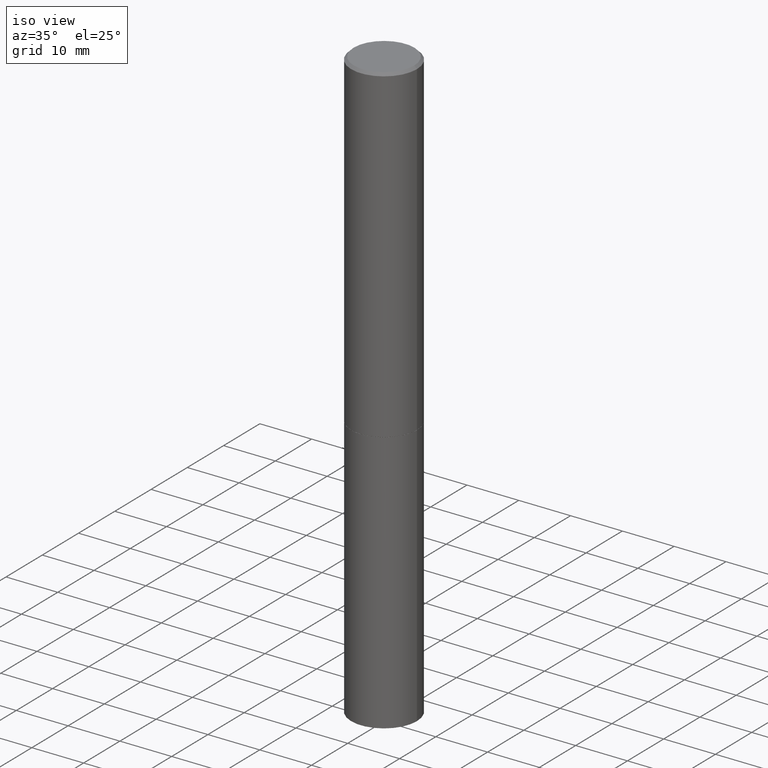
[diagram: clean part render]
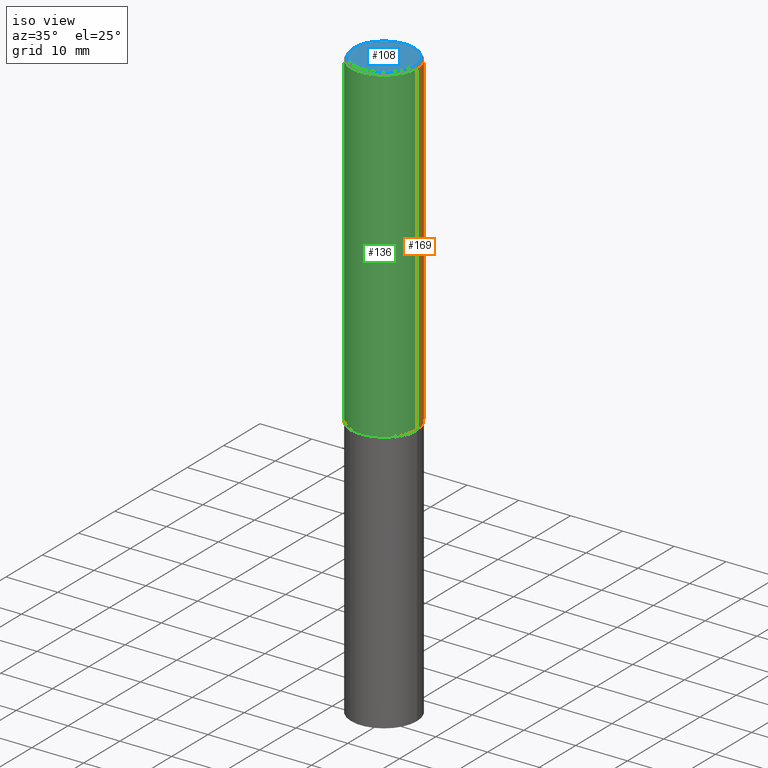
[diagram: same view with three faces highlighted in distinct colors, each labeled with its STEP entity id]
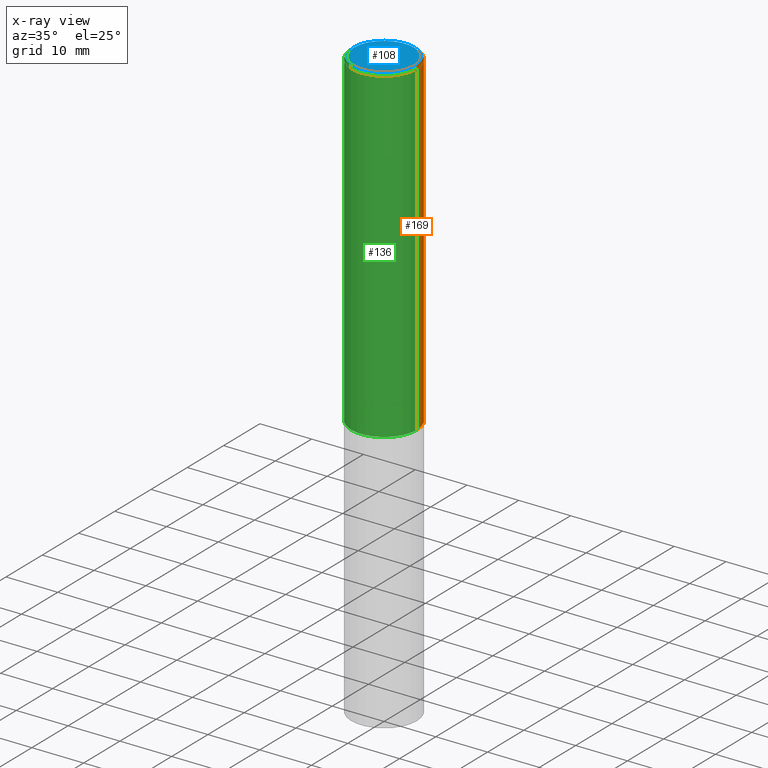
[diagram: x-ray of the same camera — body ghosted, the three highlighted faces saturated]
A machine part, iso view with three faces highlighted in distinct colors.
The next image is the same camera in x-ray (body ghosted, the three faces saturated) — at least one of them is partly hidden behind the body in this view.
Their STEP definitions:

[orange] entity #169 — the highlighted cylindrical surface (partial cylindrical patch) has radius 6.35 mm, axis along (-0, 0, 1).
#19 = LINE ( 'NONE', #259, #247 ) ;
#35 = CIRCLE ( 'NONE', #109, 0.2500000000000000000 ) ;
#38 = ORIENTED_EDGE ( 'NONE', *, *, #210, .T. ) ;
#52 = VERTEX_POINT ( 'NONE', #111 ) ;
#61 = CARTESIAN_POINT ( 'NONE',  ( 4.890937612370287172E-31, -6.982962677686310098E-17, -0.02000000000000005593 ) ) ;
#62 = EDGE_CURVE ( 'NONE', #365, #369, #207, .T. ) ;
#78 = EDGE_CURVE ( 'NONE', #52, #161, #19, .T. ) ;
#90 = DIRECTION ( 'NONE',  ( -2.445468806185136597E-29, 3.491481338843145583E-15, 1.000000000000000000 ) ) ;
#91 = DIRECTION ( 'NONE',  ( 1.000000000000000000, -6.982962677686266711E-15, 0.000000000000000000 ) ) ;
#109 = AXIS2_PLACEMENT_3D ( 'NONE', #387, #90, #177 ) ;
#110 = DIRECTION ( 'NONE',  ( -2.445468806185136877E-29, 3.491481338843145188E-15, 1.000000000000000000 ) ) ;
#111 = CARTESIAN_POINT ( 'NONE',  ( -0.2500000000000000000, -2.621163906872689391E-15, -2.499000000000000110 ) ) ;
#121 = CARTESIAN_POINT ( 'NONE',  ( 0.000000000000000000, 0.000000000000000000, 0.000000000000000000 ) ) ;
#161 = VERTEX_POINT ( 'NONE', #319 ) ;
#169 = ADVANCED_FACE ( 'NONE', ( #172 ), #291, .T. ) ;
#172 = FACE_OUTER_BOUND ( 'NONE', #338, .T. ) ;
#177 = DIRECTION ( 'NONE',  ( 1.000000000000000000, -6.982962677686266711E-15, 0.000000000000000000 ) ) ;
#183 = CARTESIAN_POINT ( 'NONE',  ( 0.2499999999999996669, -1.784954126219743428E-15, -0.02000000000000005593 ) ) ;
#204 = CARTESIAN_POINT ( 'NONE',  ( 0.2499999999999998335, -1.745740669421565494E-15, 1.219044193948983107E-29 ) ) ;
#205 = VECTOR ( 'NONE', #324, 39.37007874015748143 ) ;
#207 = LINE ( 'NONE', #204, #205 ) ;
#210 = EDGE_CURVE ( 'NONE', #365, #52, #35, .T. ) ;
#214 = AXIS2_PLACEMENT_3D ( 'NONE', #61, #220, #91 ) ;
#220 = DIRECTION ( 'NONE',  ( -2.445468806185136597E-29, 3.491481338843145583E-15, 1.000000000000000000 ) ) ;
#229 = ORIENTED_EDGE ( 'NONE', *, *, #375, .F. ) ;
#242 = DIRECTION ( 'NONE',  ( 1.000000000000000000, -6.982962677686266711E-15, 4.876176775795935793E-29 ) ) ;
#247 = VECTOR ( 'NONE', #110, 39.37007874015748143 ) ;
#259 = CARTESIAN_POINT ( 'NONE',  ( -0.2499999999999998335, 1.776356839400249281E-15, -1.229733772563725605E-29 ) ) ;
#285 = ORIENTED_EDGE ( 'NONE', *, *, #62, .F. ) ;
#286 = CIRCLE ( 'NONE', #214, 0.2499999999999996669 ) ;
#291 = CYLINDRICAL_SURFACE ( 'NONE', #322, 0.2499999999999998335 ) ;
#296 = DIRECTION ( 'NONE',  ( -2.445468806185136597E-29, 3.491481338843145583E-15, 1.000000000000000000 ) ) ;
#310 = ORIENTED_EDGE ( 'NONE', *, *, #78, .T. ) ;
#319 = CARTESIAN_POINT ( 'NONE',  ( -0.2499999999999996669, 1.675911042644701210E-15, -0.02000000000000005593 ) ) ;
#322 = AXIS2_PLACEMENT_3D ( 'NONE', #121, #296, #242 ) ;
#324 = DIRECTION ( 'NONE',  ( -2.445468806185136877E-29, 3.491481338843145188E-15, 1.000000000000000000 ) ) ;
#338 = EDGE_LOOP ( 'NONE', ( #38, #310, #229, #285 ) ) ;
#352 = CARTESIAN_POINT ( 'NONE',  ( 0.2500000000000000000, -1.047095253519058861E-14, -2.499000000000000110 ) ) ;
#365 = VERTEX_POINT ( 'NONE', #352 ) ;
#369 = VERTEX_POINT ( 'NONE', #183 ) ;
#375 = EDGE_CURVE ( 'NONE', #369, #161, #286, .T. ) ;
#387 = CARTESIAN_POINT ( 'NONE',  ( 6.111226546656657010E-29, -8.725211865769021935E-15, -2.499000000000000110 ) ) ;

[blue] entity #108 — the highlighted planar face has unit normal (0, -0, -1).
#9 = CIRCLE ( 'NONE', #379, 0.2299999999999996769 ) ;
#48 = DIRECTION ( 'NONE',  ( 2.438088387897960049E-29, -3.491481338843145188E-15, -1.000000000000000000 ) ) ;
#55 = CARTESIAN_POINT ( 'NONE',  ( 1.606081415867838898E-15, 0.2299999999999996769, -8.030407079339223086E-16 ) ) ;
#71 = ORIENTED_EDGE ( 'NONE', *, *, #195, .T. ) ;
#84 = DIRECTION ( 'NONE',  ( -1.000000000000000000, 6.982962677686265922E-15, -4.876176775795935793E-29 ) ) ;
#100 = EDGE_LOOP ( 'NONE', ( #71, #163 ) ) ;
#102 = VERTEX_POINT ( 'NONE', #231 ) ;
#108 = ADVANCED_FACE ( 'NONE', ( #203 ), #344, .F. ) ;
#119 = DIRECTION ( 'NONE',  ( -2.445468806185136597E-29, 3.491481338843145583E-15, 1.000000000000000000 ) ) ;
#154 = DIRECTION ( 'NONE',  ( 1.000000000000000000, -6.982962677686266711E-15, 4.876176775795935793E-29 ) ) ;
#163 = ORIENTED_EDGE ( 'NONE', *, *, #186, .T. ) ;
#186 = EDGE_CURVE ( 'NONE', #201, #102, #188, .T. ) ;
#188 = CIRCLE ( 'NONE', #389, 0.2299999999999996769 ) ;
#195 = EDGE_CURVE ( 'NONE', #102, #201, #9, .T. ) ;
#201 = VERTEX_POINT ( 'NONE', #241 ) ;
#203 = FACE_OUTER_BOUND ( 'NONE', #100, .T. ) ;
#231 = CARTESIAN_POINT ( 'NONE',  ( -0.2299999999999996769, 1.640996229256270350E-15, -1.135408596578604159E-29 ) ) ;
#236 = DIRECTION ( 'NONE',  ( -2.445468806185136597E-29, 3.491481338843145583E-15, 1.000000000000000000 ) ) ;
#241 = CARTESIAN_POINT ( 'NONE',  ( 0.2299999999999996769, -1.681434332853596842E-15, 1.149527484987431259E-29 ) ) ;
#302 = AXIS2_PLACEMENT_3D ( 'NONE', #55, #48, #84 ) ;
#327 = DIRECTION ( 'NONE',  ( 1.000000000000000000, -6.982962677686266711E-15, 4.876176775795935793E-29 ) ) ;
#332 = CARTESIAN_POINT ( 'NONE',  ( 0.000000000000000000, 0.000000000000000000, 0.000000000000000000 ) ) ;
#344 = PLANE ( 'NONE',  #302 ) ;
#379 = AXIS2_PLACEMENT_3D ( 'NONE', #332, #119, #154 ) ;
#385 = CARTESIAN_POINT ( 'NONE',  ( 0.000000000000000000, 0.000000000000000000, 0.000000000000000000 ) ) ;
#389 = AXIS2_PLACEMENT_3D ( 'NONE', #385, #236, #327 ) ;

[green] entity #136 — the highlighted cylindrical surface (partial cylindrical patch) has radius 6.35 mm, axis along (-0, 0, 1).
#13 = DIRECTION ( 'NONE',  ( -2.445468806185136597E-29, 3.491481338843145583E-15, 1.000000000000000000 ) ) ;
#16 = ORIENTED_EDGE ( 'NONE', *, *, #78, .F. ) ;
#19 = LINE ( 'NONE', #259, #247 ) ;
#22 = DIRECTION ( 'NONE',  ( -2.445468806185136597E-29, 3.491481338843145583E-15, 1.000000000000000000 ) ) ;
#24 = DIRECTION ( 'NONE',  ( 1.000000000000000000, -6.982962677686266711E-15, 0.000000000000000000 ) ) ;
#52 = VERTEX_POINT ( 'NONE', #111 ) ;
#57 = CYLINDRICAL_SURFACE ( 'NONE', #132, 0.2499999999999998335 ) ;
#58 = CIRCLE ( 'NONE', #127, 0.2499999999999996669 ) ;
#62 = EDGE_CURVE ( 'NONE', #365, #369, #207, .T. ) ;
#73 = ORIENTED_EDGE ( 'NONE', *, *, #345, .F. ) ;
#78 = EDGE_CURVE ( 'NONE', #52, #161, #19, .T. ) ;
#80 = EDGE_LOOP ( 'NONE', ( #16, #276, #281, #73 ) ) ;
#81 = CIRCLE ( 'NONE', #92, 0.2500000000000000000 ) ;
#85 = CARTESIAN_POINT ( 'NONE',  ( 4.890937612370287172E-31, -6.982962677686310098E-17, -0.02000000000000005593 ) ) ;
#86 = FACE_OUTER_BOUND ( 'NONE', #80, .T. ) ;
#92 = AXIS2_PLACEMENT_3D ( 'NONE', #292, #22, #382 ) ;
#110 = DIRECTION ( 'NONE',  ( -2.445468806185136877E-29, 3.491481338843145188E-15, 1.000000000000000000 ) ) ;
#111 = CARTESIAN_POINT ( 'NONE',  ( -0.2500000000000000000, -2.621163906872689391E-15, -2.499000000000000110 ) ) ;
#125 = DIRECTION ( 'NONE',  ( -2.445468806185136597E-29, 3.491481338843145583E-15, 1.000000000000000000 ) ) ;
#127 = AXIS2_PLACEMENT_3D ( 'NONE', #85, #125, #24 ) ;
#129 = EDGE_CURVE ( 'NONE', #52, #365, #81, .T. ) ;
#132 = AXIS2_PLACEMENT_3D ( 'NONE', #180, #13, #342 ) ;
#136 = ADVANCED_FACE ( 'NONE', ( #86 ), #57, .T. ) ;
#161 = VERTEX_POINT ( 'NONE', #319 ) ;
#180 = CARTESIAN_POINT ( 'NONE',  ( 0.000000000000000000, 0.000000000000000000, 0.000000000000000000 ) ) ;
#183 = CARTESIAN_POINT ( 'NONE',  ( 0.2499999999999996669, -1.784954126219743428E-15, -0.02000000000000005593 ) ) ;
#204 = CARTESIAN_POINT ( 'NONE',  ( 0.2499999999999998335, -1.745740669421565494E-15, 1.219044193948983107E-29 ) ) ;
#205 = VECTOR ( 'NONE', #324, 39.37007874015748143 ) ;
#207 = LINE ( 'NONE', #204, #205 ) ;
#247 = VECTOR ( 'NONE', #110, 39.37007874015748143 ) ;
#259 = CARTESIAN_POINT ( 'NONE',  ( -0.2499999999999998335, 1.776356839400249281E-15, -1.229733772563725605E-29 ) ) ;
#276 = ORIENTED_EDGE ( 'NONE', *, *, #129, .T. ) ;
#281 = ORIENTED_EDGE ( 'NONE', *, *, #62, .T. ) ;
#292 = CARTESIAN_POINT ( 'NONE',  ( 6.111226546656657010E-29, -8.725211865769021935E-15, -2.499000000000000110 ) ) ;
#319 = CARTESIAN_POINT ( 'NONE',  ( -0.2499999999999996669, 1.675911042644701210E-15, -0.02000000000000005593 ) ) ;
#324 = DIRECTION ( 'NONE',  ( -2.445468806185136877E-29, 3.491481338843145188E-15, 1.000000000000000000 ) ) ;
#342 = DIRECTION ( 'NONE',  ( 1.000000000000000000, -6.982962677686266711E-15, 4.876176775795935793E-29 ) ) ;
#345 = EDGE_CURVE ( 'NONE', #161, #369, #58, .T. ) ;
#352 = CARTESIAN_POINT ( 'NONE',  ( 0.2500000000000000000, -1.047095253519058861E-14, -2.499000000000000110 ) ) ;
#365 = VERTEX_POINT ( 'NONE', #352 ) ;
#369 = VERTEX_POINT ( 'NONE', #183 ) ;
#382 = DIRECTION ( 'NONE',  ( 1.000000000000000000, -6.982962677686266711E-15, 0.000000000000000000 ) ) ;